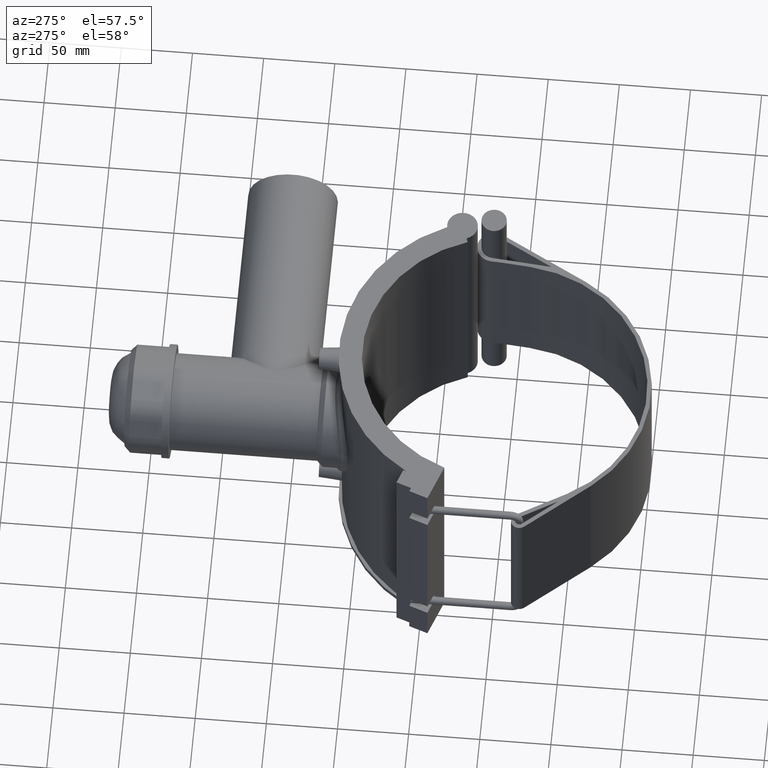
[diagram: clean part render]
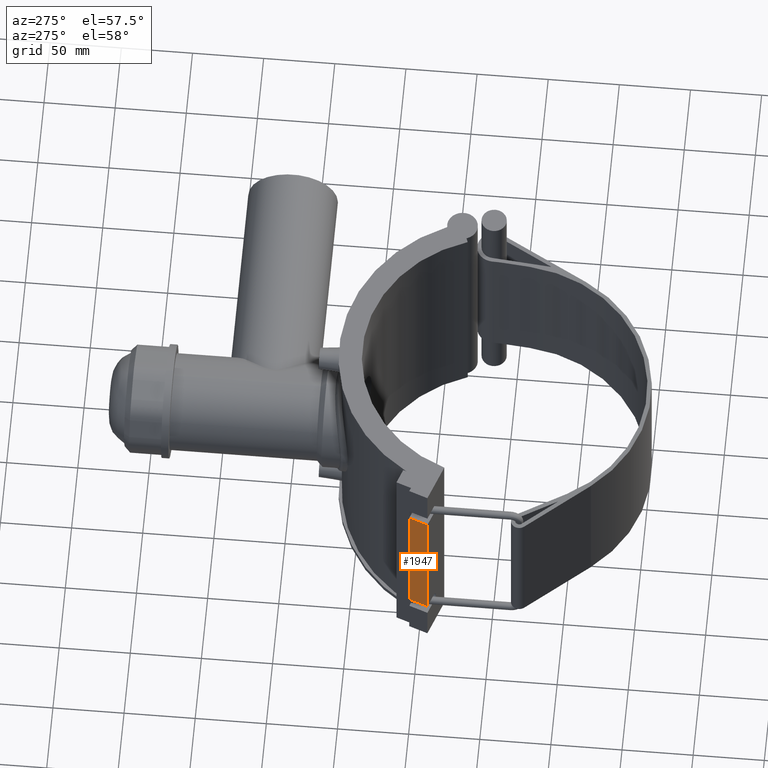
[diagram: same view with one face highlighted and labeled with its STEP entity id]
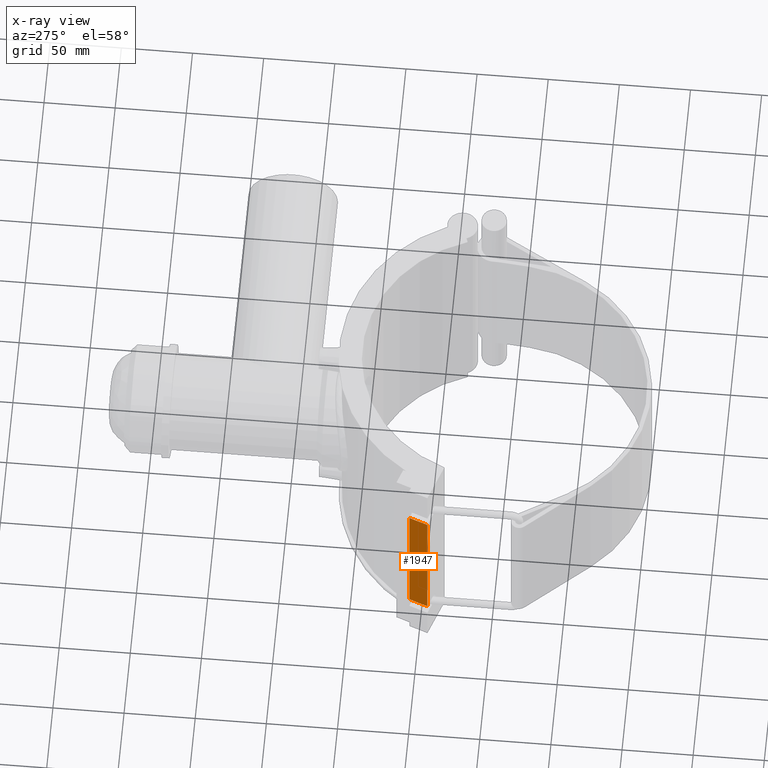
[diagram: x-ray of the same camera — body ghosted, the highlighted face saturated]
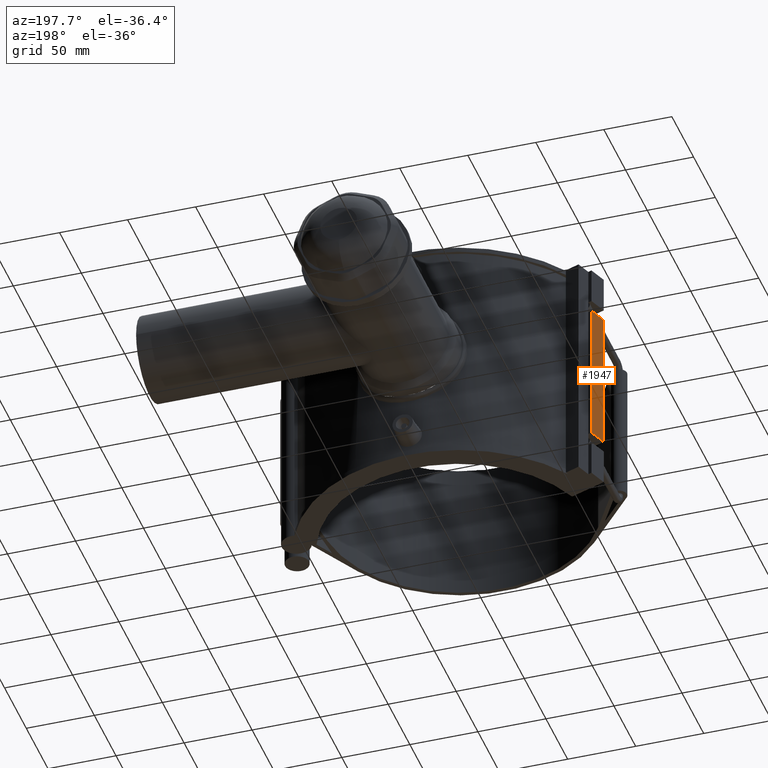
[diagram: same view with one face highlighted and labeled with its STEP entity id]
A machine part, auxiliary view. The second image highlights one B-rep face of the part: STEP entity #1947.
The next image is the same camera in x-ray: the body ghosted, the highlighted face saturated — about 0% of this face is hidden behind the body in this view.
A second angle (auxiliary view) of the same face is appended — the face is thin or edge-on in the first view.
In plain terms, the highlighted planar face has unit normal (-0.9397, 0.342, 0).
Its self-contained STEP definition (entity closure, byte-faithful):
#142=LINE('',#3500,#303);
#144=LINE('',#3510,#305);
#149=LINE('',#3524,#310);
#156=LINE('',#3536,#317);
#303=VECTOR('',#2565,106.);
#305=VECTOR('',#2579,14.);
#310=VECTOR('',#2594,14.);
#317=VECTOR('',#2607,106.);
#526=FACE_OUTER_BOUND('',#668,.T.);
#668=EDGE_LOOP('',(#1607,#1608,#1609,#1610));
#946=VERTEX_POINT('',#3497);
#947=VERTEX_POINT('',#3499);
#949=VERTEX_POINT('',#3509);
#953=VERTEX_POINT('',#3523);
#1173=EDGE_CURVE('',#947,#946,#142,.T.);
#1178=EDGE_CURVE('',#946,#949,#144,.T.);
#1185=EDGE_CURVE('',#953,#947,#149,.T.);
#1192=EDGE_CURVE('',#953,#949,#156,.T.);
#1607=ORIENTED_EDGE('',*,*,#1178,.T.);
#1608=ORIENTED_EDGE('',*,*,#1192,.F.);
#1609=ORIENTED_EDGE('',*,*,#1185,.T.);
#1610=ORIENTED_EDGE('',*,*,#1173,.T.);
#1847=PLANE('',#2137);
#1947=ADVANCED_FACE('',(#526),#1847,.T.);
#2137=AXIS2_PLACEMENT_3D('',#3539,#2611,#2612);
#2565=DIRECTION('',(0.,0.,1.));
#2579=DIRECTION('',(0.34202014332567,0.939692620785908,4.68386162474976E-31));
#2594=DIRECTION('',(-0.34202014332567,-0.939692620785908,-1.26341004351803E-31));
#2607=DIRECTION('',(0.,0.,1.));
#2611=DIRECTION('center_axis',(-0.939692620785908,0.34202014332567,0.));
#2612=DIRECTION('ref_axis',(-0.342020143325669,-0.939692620785908,0.));
#3497=CARTESIAN_POINT('',(-120.280655460596,43.7785783456856,53.));
#3499=CARTESIAN_POINT('',(-120.280655460596,43.7785783456856,-53.));
#3500=CARTESIAN_POINT('',(-120.280655460596,43.7785783456855,-88.));
#3509=CARTESIAN_POINT('',(-115.492373454037,56.9342750366883,53.));
#3510=CARTESIAN_POINT('',(-117.886514457316,50.3564266911869,53.));
#3523=CARTESIAN_POINT('',(-115.492373454037,56.9342750366883,-53.));
#3524=CARTESIAN_POINT('',(-117.886514457316,50.3564266911869,-53.));
#3536=CARTESIAN_POINT('',(-115.492373454037,56.9342750366882,-88.));
#3539=CARTESIAN_POINT('Origin',(-115.492373454037,56.9342750366882,-88.));